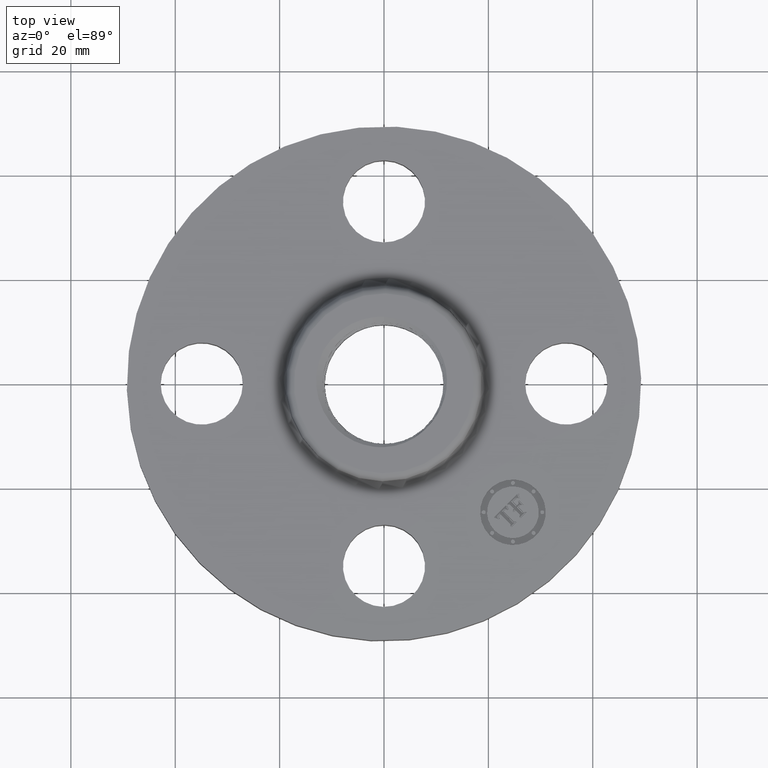
[diagram: clean part render]
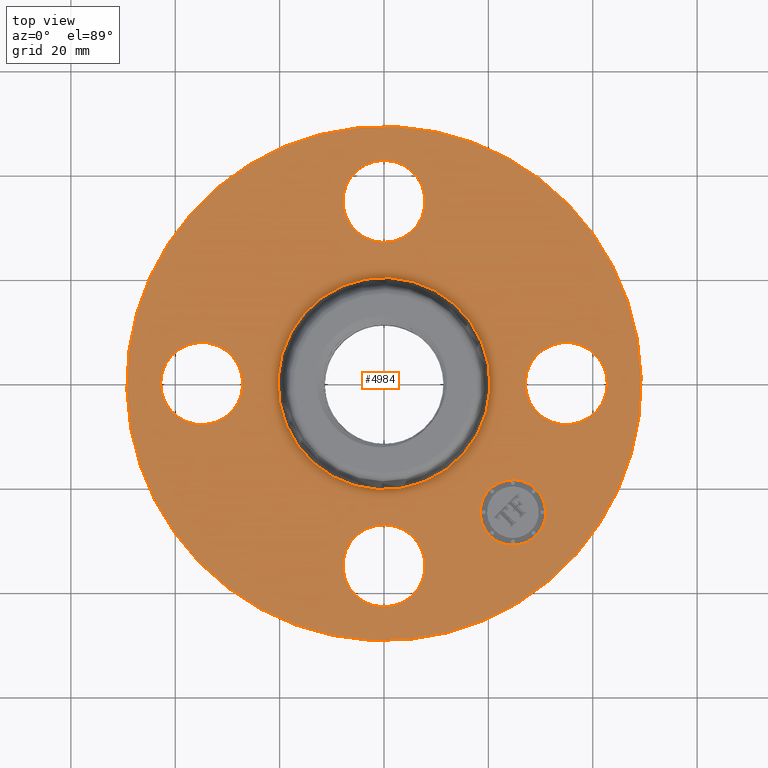
[diagram: same view with one face highlighted and labeled with its STEP entity id]
A machine part, top view. The second image highlights one B-rep face of the part: STEP entity #4984.
In plain terms, the highlighted planar face has unit normal (0, 0, -1).
Its self-contained STEP definition (entity closure, byte-faithful):
#325=AXIS2_PLACEMENT_3D('Circle Axis2P3D',#323,#324,$) ;
#342=AXIS2_PLACEMENT_3D('Circle Axis2P3D',#340,#341,$) ;
#382=AXIS2_PLACEMENT_3D('Circle Axis2P3D',#380,#381,$) ;
#399=AXIS2_PLACEMENT_3D('Circle Axis2P3D',#397,#398,$) ;
#439=AXIS2_PLACEMENT_3D('Circle Axis2P3D',#437,#438,$) ;
#456=AXIS2_PLACEMENT_3D('Circle Axis2P3D',#454,#455,$) ;
#660=AXIS2_PLACEMENT_3D('Circle Axis2P3D',#658,#659,$) ;
#686=AXIS2_PLACEMENT_3D('Circle Axis2P3D',#684,#685,$) ;
#710=AXIS2_PLACEMENT_3D('Circle Axis2P3D',#708,#709,$) ;
#729=AXIS2_PLACEMENT_3D('Circle Axis2P3D',#727,#728,$) ;
#760=AXIS2_PLACEMENT_3D('Circle Axis2P3D',#758,#759,$) ;
#772=AXIS2_PLACEMENT_3D('Circle Axis2P3D',#770,#771,$) ;
#4940=AXIS2_PLACEMENT_3D('Plane Axis2P3D',#4937,#4938,#4939) ;
#4968=AXIS2_PLACEMENT_3D('Circle Axis2P3D',#4966,#4967,$) ;
#4977=AXIS2_PLACEMENT_3D('Circle Axis2P3D',#4975,#4976,$) ;
#306=CARTESIAN_POINT('Vertex',(-0.148621916968,-1.64705059419,0.440000000002)) ;
#320=CARTESIAN_POINT('Vertex',(0.148621916968,-1.10294940582,0.440000000002)) ;
#323=CARTESIAN_POINT('Axis2P3D Location',(-1.9554676711E-016,-1.37500000001,0.440000000002)) ;
#340=CARTESIAN_POINT('Axis2P3D Location',(-1.9554676711E-016,-1.37500000001,0.440000000002)) ;
#363=CARTESIAN_POINT('Vertex',(-1.64705059419,0.148621916968,0.440000000002)) ;
#377=CARTESIAN_POINT('Vertex',(-1.10294940582,-0.148621916968,0.440000000002)) ;
#380=CARTESIAN_POINT('Axis2P3D Location',(-1.37500000001,-1.68388934883E-016,0.440000000002)) ;
#397=CARTESIAN_POINT('Axis2P3D Location',(-1.37500000001,-1.68388934883E-016,0.440000000002)) ;
#420=CARTESIAN_POINT('Vertex',(0.148621916968,1.64705059419,0.440000000002)) ;
#434=CARTESIAN_POINT('Vertex',(-0.148621916968,1.10294940582,0.440000000002)) ;
#437=CARTESIAN_POINT('Axis2P3D Location',(-2.52583402325E-016,1.37500000001,0.440000000002)) ;
#454=CARTESIAN_POINT('Axis2P3D Location',(-2.52583402325E-016,1.37500000001,0.440000000002)) ;
#658=CARTESIAN_POINT('Axis2P3D Location',(0.,0.,0.440000000002)) ;
#662=CARTESIAN_POINT('Vertex',(-0.383706301512,-0.702369673661,0.440000000002)) ;
#664=CARTESIAN_POINT('Vertex',(0.383706301512,0.702369673661,0.440000000002)) ;
#684=CARTESIAN_POINT('Axis2P3D Location',(0.,0.,0.440000000002)) ;
#705=CARTESIAN_POINT('Vertex',(0.930085544896,1.70251017007,0.440000000002)) ;
#708=CARTESIAN_POINT('Axis2P3D Location',(0.,0.,0.440000000002)) ;
#712=CARTESIAN_POINT('Vertex',(-0.930085544896,-1.70251017007,0.440000000002)) ;
#727=CARTESIAN_POINT('Axis2P3D Location',(0.,0.,0.440000000002)) ;
#748=CARTESIAN_POINT('Vertex',(1.64705059419,-0.148621916968,0.440000000002)) ;
#755=CARTESIAN_POINT('Vertex',(1.10294940582,0.148621916968,0.440000000002)) ;
#758=CARTESIAN_POINT('Axis2P3D Location',(1.37500000001,0.,0.440000000002)) ;
#770=CARTESIAN_POINT('Axis2P3D Location',(1.37500000001,0.,0.440000000002)) ;
#4937=CARTESIAN_POINT('Axis2P3D Location',(0.,1.94000000001,0.440000000002)) ;
#4966=CARTESIAN_POINT('Axis2P3D Location',(0.972271824135,-0.972271824135,0.440000000002)) ;
#4970=CARTESIAN_POINT('Vertex',(1.14728075248,-0.797262895791,0.440000000002)) ;
#4972=CARTESIAN_POINT('Vertex',(0.797262895791,-1.14728075248,0.440000000002)) ;
#4975=CARTESIAN_POINT('Axis2P3D Location',(0.972271824135,-0.972271824135,0.440000000002)) ;
#324=DIRECTION('Axis2P3D Direction',(0.,-0.,-0.0393700787402)) ;
#341=DIRECTION('Axis2P3D Direction',(0.,-0.,-0.0393700787402)) ;
#381=DIRECTION('Axis2P3D Direction',(-0.,0.,-0.0393700787402)) ;
#398=DIRECTION('Axis2P3D Direction',(-0.,0.,-0.0393700787402)) ;
#438=DIRECTION('Axis2P3D Direction',(0.,0.,-0.0393700787402)) ;
#455=DIRECTION('Axis2P3D Direction',(0.,0.,-0.0393700787402)) ;
#659=DIRECTION('Axis2P3D Direction',(0.,0.,-0.0393700787402)) ;
#685=DIRECTION('Axis2P3D Direction',(0.,0.,-0.0393700787402)) ;
#709=DIRECTION('Axis2P3D Direction',(0.,0.,-0.0393700787402)) ;
#728=DIRECTION('Axis2P3D Direction',(0.,0.,-0.0393700787402)) ;
#759=DIRECTION('Axis2P3D Direction',(0.,-0.,-0.0393700787402)) ;
#771=DIRECTION('Axis2P3D Direction',(0.,-0.,-0.0393700787402)) ;
#4938=DIRECTION('Axis2P3D Direction',(0.,0.,-0.0393700787402)) ;
#4939=DIRECTION('Axis2P3D XDirection',(0.0393700787402,0.,0.)) ;
#4967=DIRECTION('Axis2P3D Direction',(0.,0.,-0.0393700787402)) ;
#4976=DIRECTION('Axis2P3D Direction',(0.,0.,-0.0393700787402)) ;
#4943=ORIENTED_EDGE('',*,*,#714,.F.) ;
#4944=ORIENTED_EDGE('',*,*,#731,.F.) ;
#4947=ORIENTED_EDGE('',*,*,#774,.T.) ;
#4948=ORIENTED_EDGE('',*,*,#762,.T.) ;
#4951=ORIENTED_EDGE('',*,*,#666,.T.) ;
#4952=ORIENTED_EDGE('',*,*,#688,.T.) ;
#4955=ORIENTED_EDGE('',*,*,#327,.T.) ;
#4956=ORIENTED_EDGE('',*,*,#344,.T.) ;
#4959=ORIENTED_EDGE('',*,*,#384,.T.) ;
#4960=ORIENTED_EDGE('',*,*,#401,.T.) ;
#4963=ORIENTED_EDGE('',*,*,#441,.T.) ;
#4964=ORIENTED_EDGE('',*,*,#458,.T.) ;
#4981=ORIENTED_EDGE('',*,*,#4974,.T.) ;
#4982=ORIENTED_EDGE('',*,*,#4979,.T.) ;
#4949=FACE_BOUND('',#4946,.T.) ;
#4953=FACE_BOUND('',#4950,.T.) ;
#4957=FACE_BOUND('',#4954,.T.) ;
#4961=FACE_BOUND('',#4958,.T.) ;
#4965=FACE_BOUND('',#4962,.T.) ;
#4983=FACE_BOUND('',#4980,.T.) ;
#4984=ADVANCED_FACE('PartBody',(#4945,#4949,#4953,#4957,#4961,#4965,#4983),#4941,.F.) ;
#326=CIRCLE('generated circle',#325,0.310000000001) ;
#343=CIRCLE('generated circle',#342,0.310000000001) ;
#383=CIRCLE('generated circle',#382,0.310000000001) ;
#400=CIRCLE('generated circle',#399,0.310000000001) ;
#440=CIRCLE('generated circle',#439,0.310000000001) ;
#457=CIRCLE('generated circle',#456,0.310000000001) ;
#661=CIRCLE('generated circle',#660,0.800345977874) ;
#687=CIRCLE('generated circle',#686,0.800345977874) ;
#711=CIRCLE('generated circle',#710,1.94000000001) ;
#730=CIRCLE('generated circle',#729,1.94000000001) ;
#761=CIRCLE('generated circle',#760,0.310000000001) ;
#773=CIRCLE('generated circle',#772,0.310000000001) ;
#4969=CIRCLE('generated circle',#4968,0.247500000001) ;
#4978=CIRCLE('generated circle',#4977,0.247500000001) ;
#327=EDGE_CURVE('',#307,#321,#326,.T.) ;
#344=EDGE_CURVE('',#321,#307,#343,.T.) ;
#384=EDGE_CURVE('',#364,#378,#383,.T.) ;
#401=EDGE_CURVE('',#378,#364,#400,.T.) ;
#441=EDGE_CURVE('',#421,#435,#440,.T.) ;
#458=EDGE_CURVE('',#435,#421,#457,.T.) ;
#666=EDGE_CURVE('',#663,#665,#661,.T.) ;
#688=EDGE_CURVE('',#665,#663,#687,.T.) ;
#714=EDGE_CURVE('',#706,#713,#711,.T.) ;
#731=EDGE_CURVE('',#713,#706,#730,.T.) ;
#762=EDGE_CURVE('',#749,#756,#761,.T.) ;
#774=EDGE_CURVE('',#756,#749,#773,.T.) ;
#4974=EDGE_CURVE('',#4971,#4973,#4969,.T.) ;
#4979=EDGE_CURVE('',#4973,#4971,#4978,.T.) ;
#4942=EDGE_LOOP('',(#4943,#4944)) ;
#4946=EDGE_LOOP('',(#4947,#4948)) ;
#4950=EDGE_LOOP('',(#4951,#4952)) ;
#4954=EDGE_LOOP('',(#4955,#4956)) ;
#4958=EDGE_LOOP('',(#4959,#4960)) ;
#4962=EDGE_LOOP('',(#4963,#4964)) ;
#4980=EDGE_LOOP('',(#4981,#4982)) ;
#4945=FACE_OUTER_BOUND('',#4942,.T.) ;
#4941=PLANE('',#4940) ;
#307=VERTEX_POINT('',#306) ;
#321=VERTEX_POINT('',#320) ;
#364=VERTEX_POINT('',#363) ;
#378=VERTEX_POINT('',#377) ;
#421=VERTEX_POINT('',#420) ;
#435=VERTEX_POINT('',#434) ;
#663=VERTEX_POINT('',#662) ;
#665=VERTEX_POINT('',#664) ;
#706=VERTEX_POINT('',#705) ;
#713=VERTEX_POINT('',#712) ;
#749=VERTEX_POINT('',#748) ;
#756=VERTEX_POINT('',#755) ;
#4971=VERTEX_POINT('',#4970) ;
#4973=VERTEX_POINT('',#4972) ;